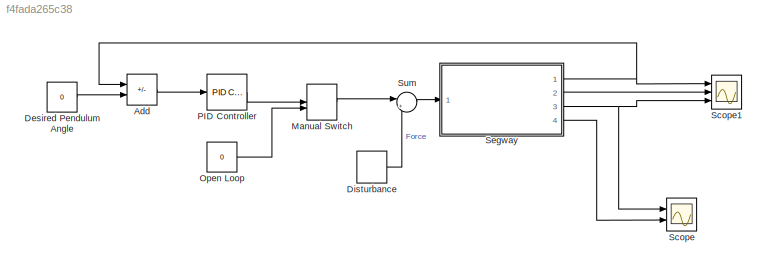
MODEL slx_f4fada265c38
KIND model
CONFIG AbsTol = auto
CONFIG EnableMultiTasking = on
CONFIG FixedStep = auto
CONFIG MaxStep = auto
CONFIG MinStep = auto
CONFIG RelTol = 1e-3
CONFIG SampleTimeConstraint = Unconstrained
CONFIG Solver = VariableStepAuto
CONFIG SolverName = VariableStepAuto
CONFIG StartTime = 0.0
CONFIG StopTime = 10
BLOCK [Sum] Add
  IconShape = rectangular
  Inputs = -+
  Ports = [2, 1]
BLOCK [Constant] Desired Pendulum Angle
  Value = 0
BLOCK [DiscretePulseGenerator] Disturbance 
  Amplitude = 1000
  Period = 10
  PhaseDelay = 1
  Ports = [0, 1]
  PulseType = Time based
  PulseWidth = 0.01
BLOCK [ManualSwitch] Manual Switch
BLOCK [Constant] Open Loop
  Value = 0
BLOCK [Reference] PID Controller  REF=simulink/Continuous/PID Controller
  Ports = [1, 1]
  SourceBlock = simulink/Continuous/PID Controller
  SourceProductBaseCode = SL
  SourceType = PID 1dof
BLOCK [Scope] Scope
  Floating = off
  NumInputPorts = 2
  Ports = [2]
  ScopeSpecificationString = Simulink.scopes.TimeScopeBlockCfg('CurrentConfiguration', extmgr.ConfigurationSet(extmgr.Configuration('Core','General UI',true),extmgr.Configuration('Core','Source UI',true),extmgr.Configuration('Sources','WiredSimulink',true),extmgr.Configuration('Visuals','Time Domain',true,'SerializedDisplays',{struct('MinYLimReal','-1.78138','MaxYLimReal','8.25309','YLabelReal','','MinYLimMag','0.00000','MaxY...<+1349ch>
BLOCK [Scope] Scope1
  Floating = off
  NumInputPorts = 3
  Ports = [3]
  ScopeSpecificationString = Simulink.scopes.TimeScopeBlockCfg('CurrentConfiguration', extmgr.ConfigurationSet(extmgr.Configuration('Core','General UI',true),extmgr.Configuration('Core','Source UI',true),extmgr.Configuration('Sources','WiredSimulink',true,'DataLoggingVariableName','ScopeData1'),extmgr.Configuration('Visuals','Time Domain',true,'SerializedDisplays',{struct('MinYLimReal','-3.92393','MaxYLimReal','3.92614','YLab...<+2770ch>
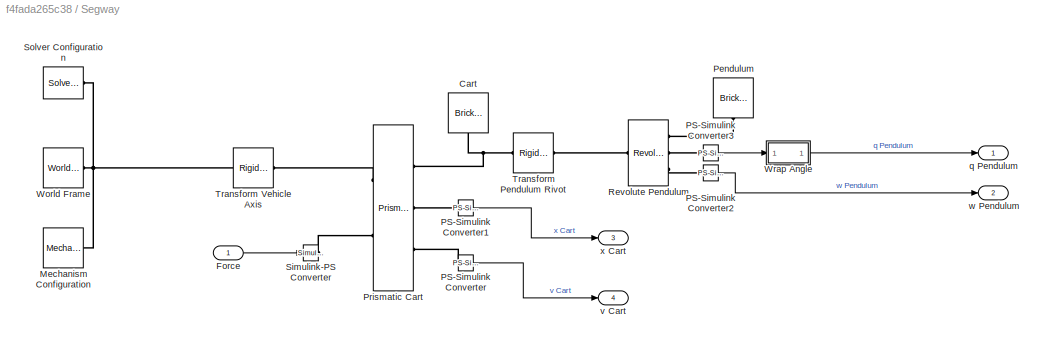
BLOCK [SubSystem] Segway
  Ports = [1, 4]
  RequestExecContextInheritance = off
BLOCK [Reference] Segway/Cart  REF=sm_lib/Body Elements/Brick Solid
  NameLocation = top
  Ports = [0, 0, 0, 0, 0, 0, 1]
  SourceBlock = sm_lib/Body Elements/Brick Solid
  SourceProductBaseCode = MS
  SourceType = Brick Solid
BLOCK [Inport] Segway/Force
BLOCK [Reference] Segway/Mechanism Configuration  REF=sm_lib/Utilities/Mechanism
Configuration
  Ports = [0, 0, 0, 0, 0, 0, 1]
  SourceBlock = sm_lib/Utilities/Mechanism\nConfiguration
  SourceProductBaseCode = MS
  SourceType = Mechanism\nConfiguration
BLOCK [Reference] Segway/PS-Simulink Converter  REF=nesl_utility/PS-Simulink
Converter
  Ports = [0, 1, 0, 0, 0, 1]
  SourceBlock = nesl_utility/PS-Simulink\nConverter
  SourceProductBaseCode = MT,SS
  SourceType = PS-Simulink\nConverter
BLOCK [Reference] Segway/PS-Simulink Converter1  REF=nesl_utility/PS-Simulink
Converter
  Ports = [0, 1, 0, 0, 0, 1]
  SourceBlock = nesl_utility/PS-Simulink\nConverter
  SourceProductBaseCode = MT,SS
  SourceType = PS-Simulink\nConverter
BLOCK [Reference] Segway/PS-Simulink Converter2  REF=nesl_utility/PS-Simulink
Converter
  Ports = [0, 1, 0, 0, 0, 1]
  SourceBlock = nesl_utility/PS-Simulink\nConverter
  SourceProductBaseCode = MT,SS
  SourceType = PS-Simulink\nConverter
BLOCK [Reference] Segway/PS-Simulink Converter3  REF=nesl_utility/PS-Simulink
Converter
  Ports = [0, 1, 0, 0, 0, 1]
  SourceBlock = nesl_utility/PS-Simulink\nConverter
  SourceProductBaseCode = MT,SS
  SourceType = PS-Simulink\nConverter
BLOCK [Reference] Segway/Pendulum  REF=sm_lib/Body Elements/Brick Solid
  NameLocation = right
  Ports = [0, 0, 0, 0, 0, 1]
  SourceBlock = sm_lib/Body Elements/Brick Solid
  SourceProductBaseCode = MS
  SourceType = Brick Solid
BLOCK [Reference] Segway/Prismatic Cart  REF=sm_lib/Joints/Prismatic
Joint
  Ports = [0, 0, 0, 0, 0, 2, 3]
  SourceBlock = sm_lib/Joints/Prismatic\nJoint
  SourceProductBaseCode = MS
  SourceType = Prismatic\nJoint
BLOCK [Reference] Segway/Revolute Pendulum  REF=sm_lib/Joints/Revolute Joint
  Ports = [0, 0, 0, 0, 0, 1, 3]
  SourceBlock = sm_lib/Joints/Revolute Joint
  SourceProductBaseCode = MS
  SourceType = Revolute Joint
BLOCK [Reference] Segway/Simulink-PS Converter  REF=nesl_utility/Simulink-PS
Converter
  Ports = [1, 0, 0, 0, 0, 0, 1]
  SourceBlock = nesl_utility/Simulink-PS\nConverter
  SourceProductBaseCode = MT,SS
  SourceType = Simulink-PS\nConverter
BLOCK [Reference] Segway/Solver Configuration  REF=nesl_utility/Solver
Configuration
  Ports = [0, 0, 0, 0, 0, 0, 1]
  SourceBlock = nesl_utility/Solver\nConfiguration
  SourceProductBaseCode = MT,SS
  SourceType = Solver\nConfiguration
BLOCK [Reference] Segway/Transform Pendulum Rivot  REF=sm_lib/Frames and
Transforms/Rigid
Transform
  Ports = [0, 0, 0, 0, 0, 1, 1]
  SourceBlock = sm_lib/Frames and\nTransforms/Rigid\nTransform
  SourceProductBaseCode = MS
  SourceType = Rigid\nTransform
BLOCK [Reference] Segway/Transform Vehicle Axis  REF=sm_lib/Frames and
Transforms/Rigid
Transform
  Ports = [0, 0, 0, 0, 0, 1, 1]
  SourceBlock = sm_lib/Frames and\nTransforms/Rigid\nTransform
  SourceProductBaseCode = MS
  SourceType = Rigid\nTransform
BLOCK [Reference] Segway/World Frame  REF=sm_lib/Frames and
Transforms/World Frame
  Ports = [0, 0, 0, 0, 0, 0, 1]
  SourceBlock = sm_lib/Frames and\nTransforms/World Frame
  SourceProductBaseCode = MS
  SourceType = World Frame
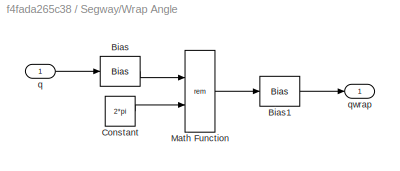
BLOCK [SubSystem] Segway/Wrap Angle
  Ports = [1, 1]
  RequestExecContextInheritance = off
BLOCK [Bias] Segway/Wrap Angle/Bias
  Bias = pi
  SaturateOnIntegerOverflow = off
BLOCK [Bias] Segway/Wrap Angle/Bias1
  Bias = -pi
  SaturateOnIntegerOverflow = off
BLOCK [Constant] Segway/Wrap Angle/Constant
  Value = 2*pi
BLOCK [Math] Segway/Wrap Angle/Math Function
  Operator = rem
  Ports = [2, 1]
  RndMeth = Zero
  SignedPower = on
BLOCK [Inport] Segway/Wrap Angle/q
BLOCK [Outport] Segway/Wrap Angle/qwrap
BLOCK [Outport] Segway/q Pendulum
BLOCK [Outport] Segway/v Cart
  Port = 4
BLOCK [Outport] Segway/w Pendulum
  Port = 2
BLOCK [Outport] Segway/x Cart
  Port = 3
BLOCK [Sum] Sum
  Inputs = |++
  Ports = [2, 1]
LINE Add:1 -> PID Controller:1
LINE Desired Pendulum Angle:1 -> Add:2
LINE Disturbance :1 -> Sum:2
LINE Manual Switch:1 -> Sum:1
LINE Open Loop:1 -> Manual Switch:2
LINE PID Controller:1 -> Manual Switch:1
LINE Segway/Force:1 -> Segway/Simulink-PS Converter:1
LINE Segway/PS-Simulink Converter1:1 -> Segway/x Cart:1
LINE Segway/PS-Simulink Converter2:1 -> Segway/w Pendulum:1
LINE Segway/PS-Simulink Converter3:1 -> Segway/Wrap Angle:1
LINE Segway/PS-Simulink Converter:1 -> Segway/v Cart:1
LINE Segway/Wrap Angle/Bias1:1 -> Segway/Wrap Angle/qwrap:1
LINE Segway/Wrap Angle/Bias:1 -> Segway/Wrap Angle/Math Function:1
LINE Segway/Wrap Angle/Constant:1 -> Segway/Wrap Angle/Math Function:2
LINE Segway/Wrap Angle/Math Function:1 -> Segway/Wrap Angle/Bias1:1
LINE Segway/Wrap Angle/q:1 -> Segway/Wrap Angle/Bias:1
LINE Segway/Wrap Angle:1 -> Segway/q Pendulum:1
NET Segway:1 -> Add:1, Scope1:1
LINE Segway:2 -> Scope1:2
NET Segway:3 -> Scope1:3, Scope:1
LINE Segway:4 -> Scope:2
LINE Sum:1 -> Segway:1
PNET net1: Segway/Cart:RConn1 -- Segway/Prismatic Cart:RConn1 -- Segway/Transform Pendulum Rivot:LConn1
PNET net2: Segway/Mechanism Configuration:RConn1 -- Segway/Solver Configuration:RConn1 -- Segway/Transform Vehicle Axis:LConn1 -- Segway/World Frame:RConn1
PLINE Segway/PS-Simulink Converter1:LConn1 -- Segway/Prismatic Cart:RConn2
PLINE Segway/PS-Simulink Converter2:LConn1 -- Segway/Revolute Pendulum:RConn3
PLINE Segway/PS-Simulink Converter3:LConn1 -- Segway/Revolute Pendulum:RConn2
PLINE Segway/PS-Simulink Converter:LConn1 -- Segway/Prismatic Cart:RConn3
PLINE Segway/Pendulum:LConn1 -- Segway/Revolute Pendulum:RConn1
PLINE Segway/Prismatic Cart:LConn1 -- Segway/Transform Vehicle Axis:RConn1
PLINE Segway/Prismatic Cart:LConn2 -- Segway/Simulink-PS Converter:RConn1
PLINE Segway/Revolute Pendulum:LConn1 -- Segway/Transform Pendulum Rivot:RConn1
note: NET lines group one-source signal fan-out (src -> all destinations, sorted); 1:1 wires keep LINE; PNET lines group multi-terminal physical nets as a canonical sorted terminal list (undirected conserving connections); 2-terminal nets keep the pairwise PLINE form
